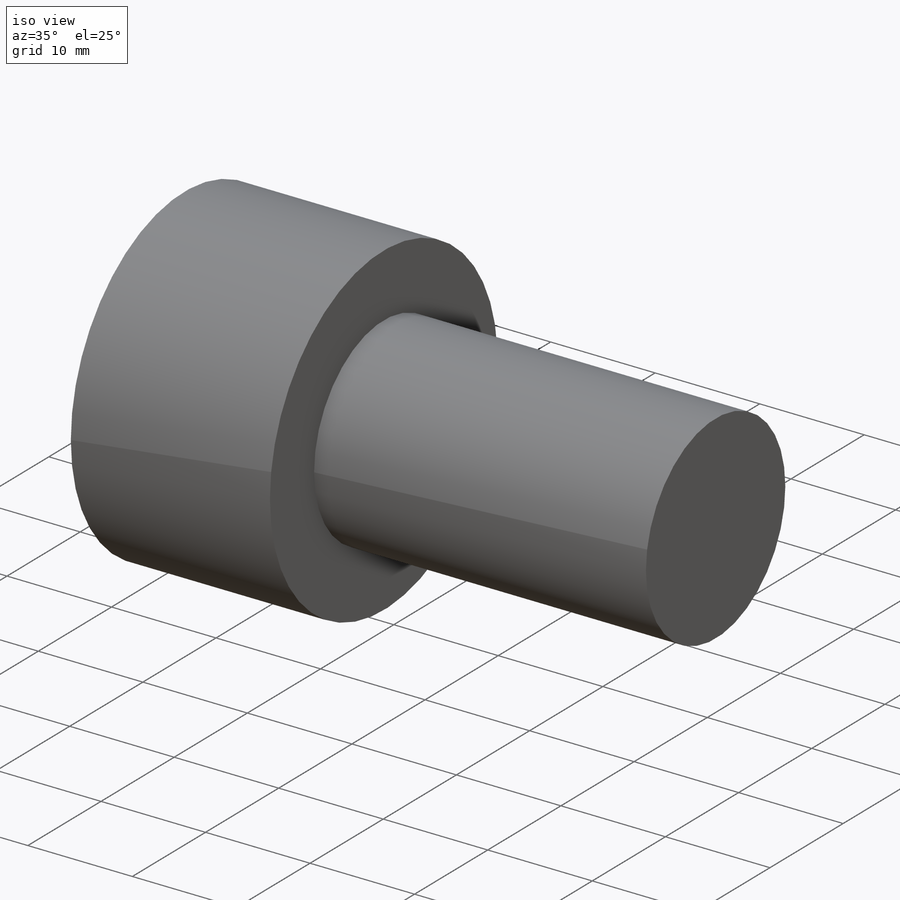
[diagram: iso view]
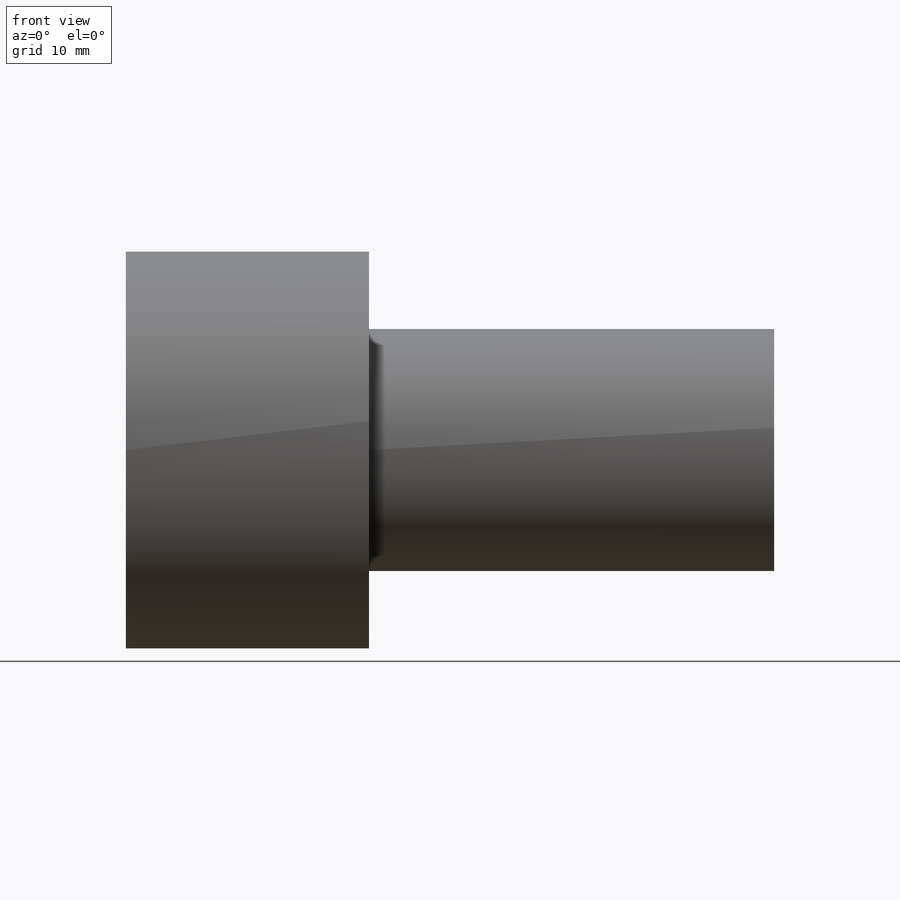
[diagram: front view]
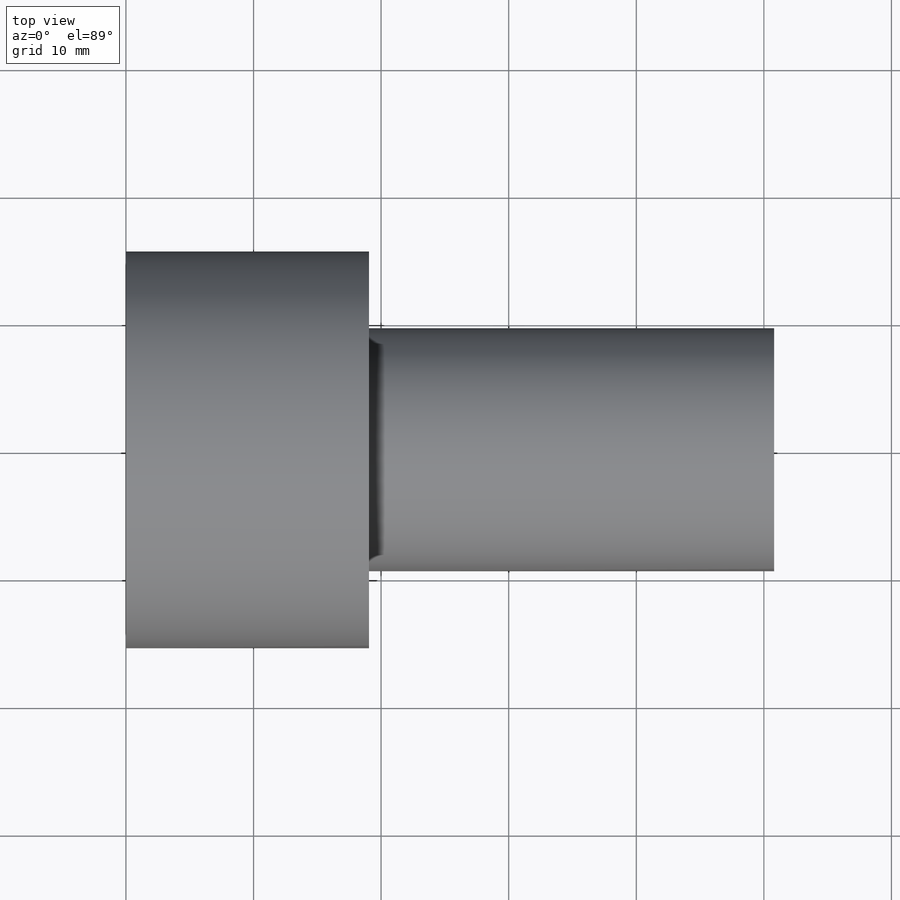
[diagram: top view]
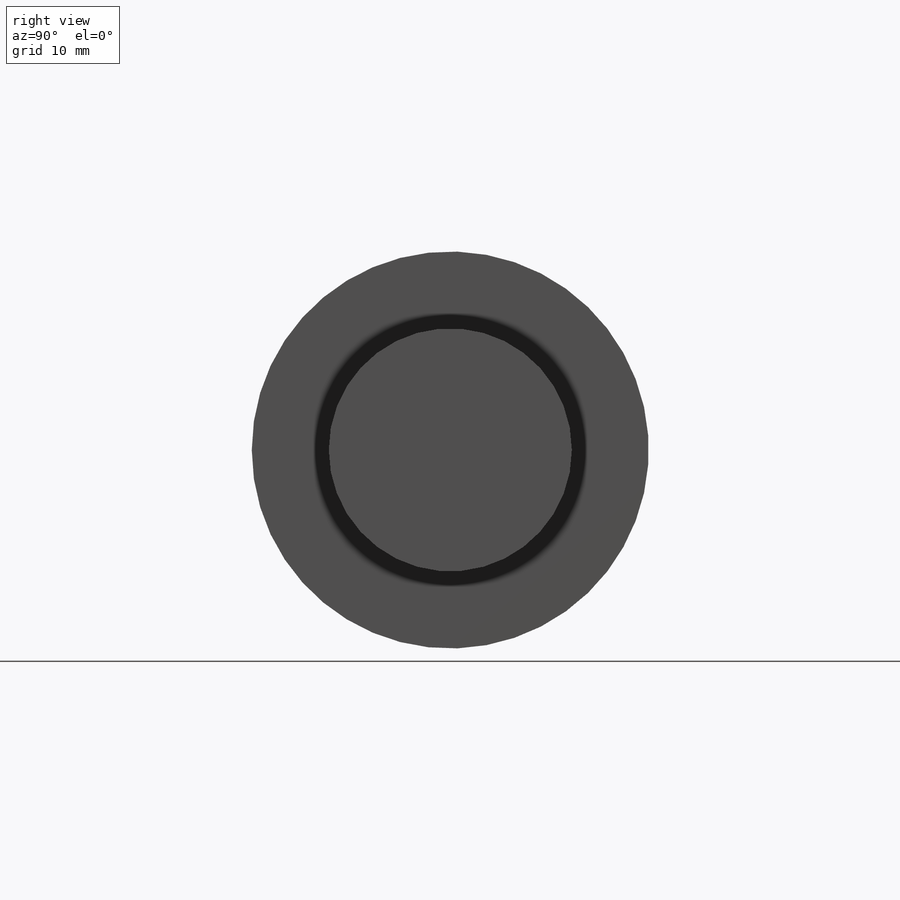
[diagram: right view]
SOLIDWORKS PART (.sldprt)
format: sldprt  version: not decoded by parser v0  size: 150,528 bytes
history: native  units: mm
features: sketch x3, material x1, revolve x1, extrude x1 (+11 scaffold rows collapsed)
feature tree (17):
  scaffold x11  (default folders/planes/origin — collapsed)
  material  "Material <not specified>"
  sketch  "Sketch1"  dims[c1.D1=~13.189269mm c2.D1=90.0deg c2.D2=~11.302123mm c3.D2=45.0deg c3.D3=19.05mm c3.D4=12.7mm c3.D5=26.98mm c3.D1=26.98mm c4.D2=3.97mm c5.D2=90.0deg c5.D3=19.04mm c5.D1=19.05mm c6.D3=6.0mm c6.D1=15.5575mm c6.D2=19.05mm c7.D3=19.05mm]
  revolve  "Revolve1"  Angle=360deg
  sketch  "3DSketch1"  dims[D1=10.0mm]
  sketch  "Sketch4"  dims[D1=~7.770932mm]
  extrude  "Boss-Extrude1"  Depth=31.75mm
decode coverage: 5 of 5 modeling features carry decoded parameters
note: ~ marks probable driven/reference dimensions
note: suppression state not decoded; provenance and decode notes live in map.json
